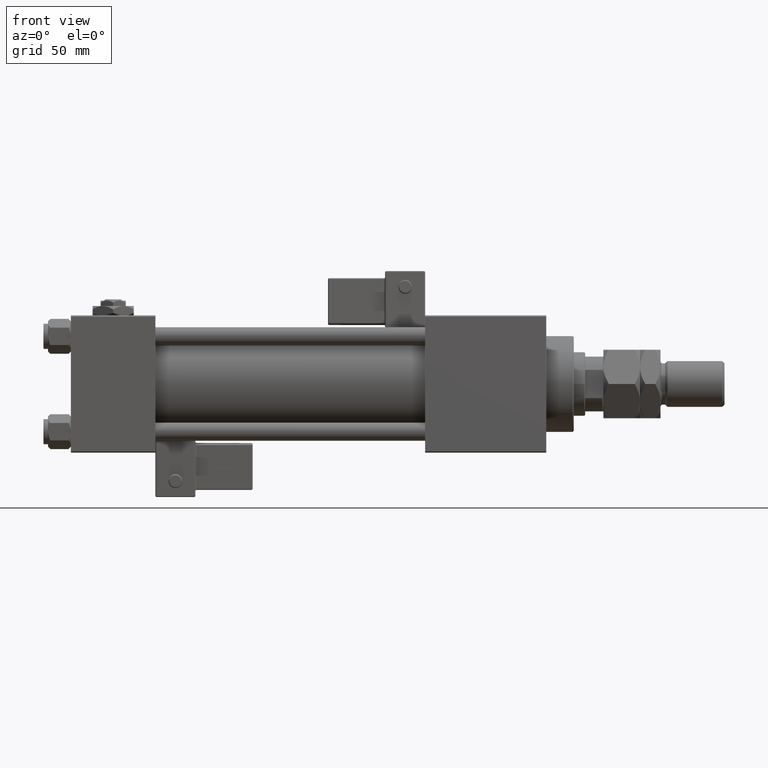
[diagram: clean part render]
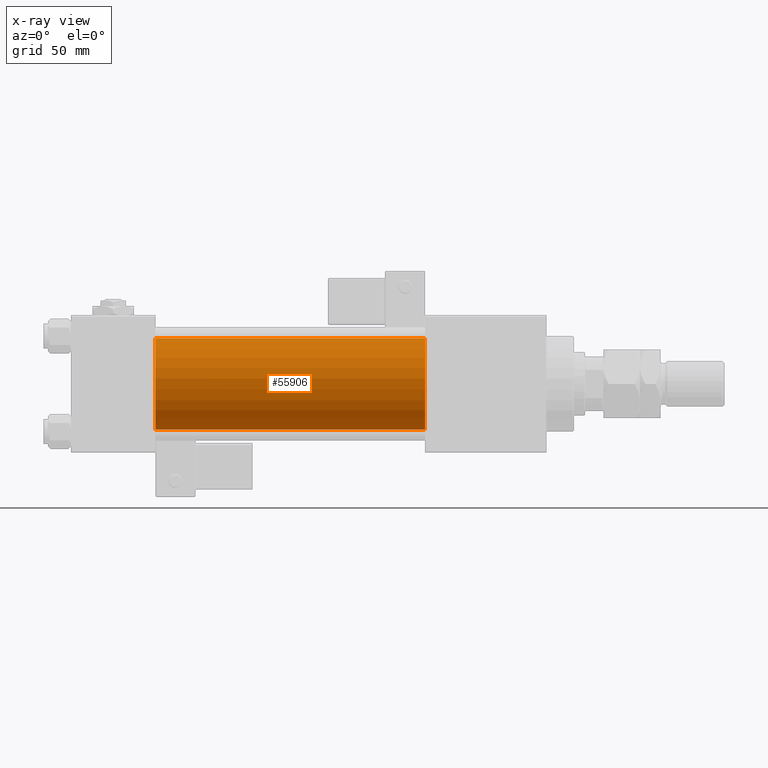
[diagram: x-ray — body ghosted, one internal face saturated and labeled with its STEP entity id]
A machine part, front view, then the same camera in x-ray: the body is ghosted and one INTERNAL B-rep face — a face not visible from any outside direction — is saturated and labeled: STEP entity #55906.
In plain terms, the highlighted cylindrical surface (partial cylindrical patch) has radius 20 mm, axis along (-1, -0, -0).
Its self-contained STEP definition (entity closure, byte-faithful):
#1031 = ORIENTED_EDGE ( 'NONE', *, *, #9680, .T. ) ;
#1602 = ORIENTED_EDGE ( 'NONE', *, *, #53919, .T. ) ;
#2675 = DIRECTION ( 'NONE',  ( -1.000000000000000000, -0.000000000000000000, -0.000000000000000000 ) ) ;
#2930 = AXIS2_PLACEMENT_3D ( 'NONE', #53468, #14654, #53190 ) ;
#5498 = VERTEX_POINT ( 'NONE', #33156 ) ;
#6923 = LINE ( 'NONE', #41475, #35653 ) ;
#8831 = DIRECTION ( 'NONE',  ( -1.000000000000000000, -0.000000000000000000, -0.000000000000000000 ) ) ;
#9680 = EDGE_CURVE ( 'NONE', #5498, #41735, #6923, .T. ) ;
#11913 = DIRECTION ( 'NONE',  ( 0.000000000000000000, 0.000000000000000000, -1.000000000000000000 ) ) ;
#12509 = LINE ( 'NONE', #38572, #49360 ) ;
#14654 = DIRECTION ( 'NONE',  ( 1.000000000000000000, 0.000000000000000000, 0.000000000000000000 ) ) ;
#20607 = FACE_OUTER_BOUND ( 'NONE', #36610, .T. ) ;
#23695 = CIRCLE ( 'NONE', #2930, 20.00000000000000000 ) ;
#26207 = CARTESIAN_POINT ( 'NONE',  ( 37.00000000000000000, -2.602085213965210642E-15, 20.00000000000000000 ) ) ;
#26635 = VERTEX_POINT ( 'NONE', #47527 ) ;
#27064 = AXIS2_PLACEMENT_3D ( 'NONE', #28915, #37125, #11913 ) ;
#28915 = CARTESIAN_POINT ( 'NONE',  ( 37.00000000000000000, -2.602085213965210642E-15, 0.000000000000000000 ) ) ;
#29135 = ORIENTED_EDGE ( 'NONE', *, *, #31718, .F. ) ;
#31718 = EDGE_CURVE ( 'NONE', #26635, #50801, #12509, .T. ) ;
#33090 = CYLINDRICAL_SURFACE ( 'NONE', #35556, 20.00000000000000000 ) ;
#33156 = CARTESIAN_POINT ( 'NONE',  ( 155.0000000000000000, -1.527916156705042519E-16, -20.00000000000000000 ) ) ;
#35556 = AXIS2_PLACEMENT_3D ( 'NONE', #55457, #47243, #50367 ) ;
#35653 = VECTOR ( 'NONE', #2675, 1000.000000000000000 ) ;
#36610 = EDGE_LOOP ( 'NONE', ( #1602, #1031, #54173, #29135 ) ) ;
#37125 = DIRECTION ( 'NONE',  ( 1.000000000000000000, 0.000000000000000000, 0.000000000000000000 ) ) ;
#38572 = CARTESIAN_POINT ( 'NONE',  ( 155.0000000000000000, -2.602085213965210642E-15, 20.00000000000000000 ) ) ;
#41475 = CARTESIAN_POINT ( 'NONE',  ( 155.0000000000000000, -1.527916156705042519E-16, -20.00000000000000000 ) ) ;
#41735 = VERTEX_POINT ( 'NONE', #47291 ) ;
#47024 = EDGE_CURVE ( 'NONE', #50801, #41735, #53264, .T. ) ;
#47243 = DIRECTION ( 'NONE',  ( -1.000000000000000000, -0.000000000000000000, -0.000000000000000000 ) ) ;
#47291 = CARTESIAN_POINT ( 'NONE',  ( 37.00000000000000000, -1.527916156705042519E-16, -20.00000000000000000 ) ) ;
#47527 = CARTESIAN_POINT ( 'NONE',  ( 155.0000000000000000, -2.602085213965210642E-15, 20.00000000000000000 ) ) ;
#49360 = VECTOR ( 'NONE', #8831, 1000.000000000000000 ) ;
#50367 = DIRECTION ( 'NONE',  ( 0.000000000000000000, 0.000000000000000000, 1.000000000000000000 ) ) ;
#50801 = VERTEX_POINT ( 'NONE', #26207 ) ;
#53190 = DIRECTION ( 'NONE',  ( 0.000000000000000000, 0.000000000000000000, -1.000000000000000000 ) ) ;
#53264 = CIRCLE ( 'NONE', #27064, 20.00000000000000000 ) ;
#53468 = CARTESIAN_POINT ( 'NONE',  ( 155.0000000000000000, -2.602085213965210642E-15, 0.000000000000000000 ) ) ;
#53919 = EDGE_CURVE ( 'NONE', #26635, #5498, #23695, .T. ) ;
#54173 = ORIENTED_EDGE ( 'NONE', *, *, #47024, .F. ) ;
#55457 = CARTESIAN_POINT ( 'NONE',  ( 155.0000000000000000, -2.602085213965210642E-15, 0.000000000000000000 ) ) ;
#55906 = ADVANCED_FACE ( 'NONE', ( #20607 ), #33090, .F. ) ;